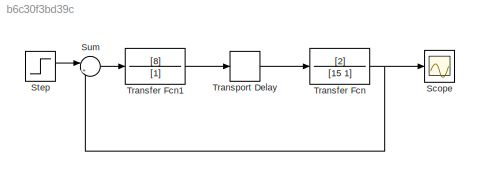
MODEL slx_b6c30f3bd39c
KIND model
BLOCK [Scope] Scope
  DataFormat = StructureWithTime
  Floating = off
  NumInputPorts = 1
  Ports = [1]
  SampleTime = 0
  ShowLegends = off
  TimeRange = 4.335126825518832
  YMax = 1.06875
  YMin = 0.9237500000000001
BLOCK [Step] Step
  SampleTime = 0
BLOCK [Sum] Sum
  IconShape = round
  InputSameDT = off
  Inputs = |+-
  OutDataTypeStr = Inherit: Inherit via internal rule
  Ports = [2, 1]
  SaturateOnIntegerOverflow = off
BLOCK [TransferFcn] Transfer Fcn
  Denominator = [15 1]
  Numerator = [2]
BLOCK [TransferFcn] Transfer Fcn1
  Denominator = [1]
  Numerator = [8]
BLOCK [TransportDelay] Transport Delay
  Ports = [1, 1]
LINE Step:1 -> Sum:1
LINE Sum:1 -> Transfer Fcn1:1
LINE Transfer Fcn1:1 -> Transport Delay:1
NET Transfer Fcn:1 -> Scope:1, Sum:2
LINE Transport Delay:1 -> Transfer Fcn:1
note: NET lines group one-source signal fan-out (src -> all destinations, sorted); 1:1 wires keep LINE
